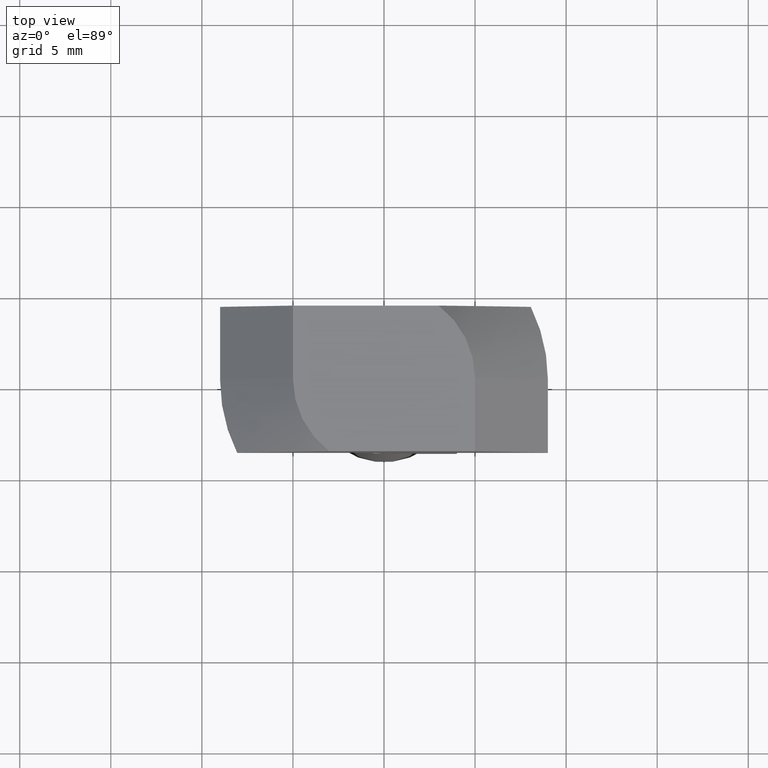
[diagram: clean part render]
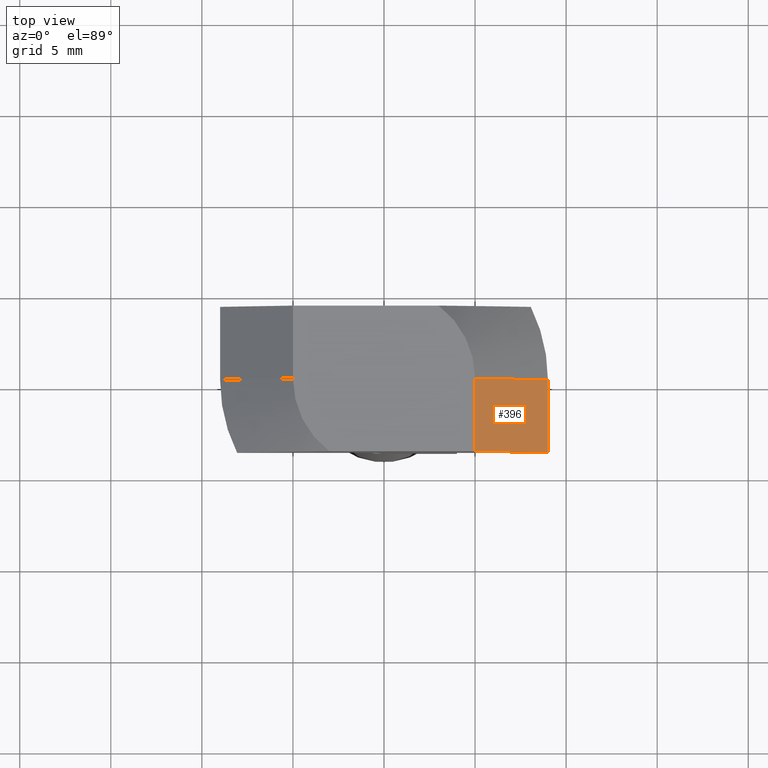
[diagram: same view with one face highlighted and labeled with its STEP entity id]
A machine part, top view. The second image highlights one B-rep face of the part: STEP entity #396.
In plain terms, the highlighted planar face has unit normal (0.7071, 0, 0.7071).
Its self-contained STEP definition (entity closure, byte-faithful):
#25=PLANE('',#457);
#54=FACE_OUTER_BOUND('',#78,.T.);
#78=EDGE_LOOP('',(#337,#338,#339,#340));
#106=LINE('',#657,#144);
#112=LINE('',#678,#150);
#114=LINE('',#682,#152);
#115=LINE('',#683,#153);
#144=VECTOR('',#537,10.);
#150=VECTOR('',#557,10.);
#152=VECTOR('',#561,10.);
#153=VECTOR('',#562,10.);
#200=VERTEX_POINT('',#654);
#201=VERTEX_POINT('',#656);
#206=VERTEX_POINT('',#677);
#207=VERTEX_POINT('',#681);
#245=EDGE_CURVE('',#200,#201,#106,.T.);
#255=EDGE_CURVE('',#201,#206,#112,.T.);
#257=EDGE_CURVE('',#200,#207,#114,.T.);
#258=EDGE_CURVE('',#206,#207,#115,.T.);
#337=ORIENTED_EDGE('',*,*,#245,.F.);
#338=ORIENTED_EDGE('',*,*,#257,.T.);
#339=ORIENTED_EDGE('',*,*,#258,.F.);
#340=ORIENTED_EDGE('',*,*,#255,.F.);
#396=ADVANCED_FACE('',(#54),#25,.T.);
#457=AXIS2_PLACEMENT_3D('',#680,#559,#560);
#537=DIRECTION('',(0.707106781186547,0.,-0.707106781186548));
#557=DIRECTION('',(0.,-1.,0.));
#559=DIRECTION('center_axis',(0.707106781186548,0.,0.707106781186547));
#560=DIRECTION('ref_axis',(0.707106781186547,0.,-0.707106781186548));
#561=DIRECTION('',(0.,-1.,0.));
#562=DIRECTION('',(-0.707106781186547,0.,0.707106781186548));
#654=CARTESIAN_POINT('',(5.,0.,0.));
#656=CARTESIAN_POINT('',(9.,0.,-4.));
#657=CARTESIAN_POINT('',(7.,0.,-2.));
#677=CARTESIAN_POINT('',(9.,-4.,-4.));
#678=CARTESIAN_POINT('',(9.,0.,-4.));
#680=CARTESIAN_POINT('Origin',(5.,0.,0.));
#681=CARTESIAN_POINT('',(5.,-4.,0.));
#682=CARTESIAN_POINT('',(5.,0.,1.96261524244674E-16));
#683=CARTESIAN_POINT('',(9.,-4.,-4.));